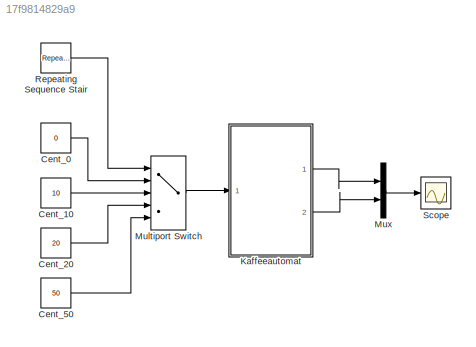
MODEL slx_17f9814829a9
KIND model
CONFIG AbsTol = auto
CONFIG FixedStep = auto
CONFIG MaxStep = auto
CONFIG MinStep = auto
CONFIG RelTol = 1e-3
CONFIG SampleTimeConstraint = Unconstrained
CONFIG Solver = FixedStepAuto
CONFIG SolverMode = Auto
CONFIG SolverName = FixedStepAuto
CONFIG StartTime = 0.0
CONFIG StopTime = 60
BLOCK [Constant] Cent_0
  Value = 0
BLOCK [Constant] Cent_10
  Value = 10
BLOCK [Constant] Cent_20
  Value = 20
BLOCK [Constant] Cent_50
  Value = 50
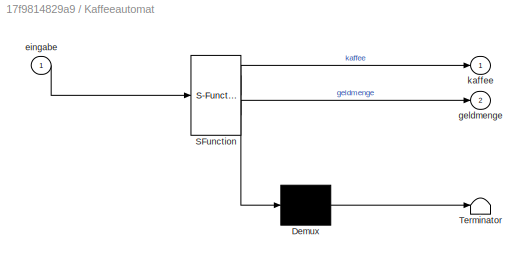
BLOCK [SubSystem] Kaffeeautomat
  ErrorFcn = Stateflow.Translate.translate
  PermitHierarchicalResolution = ExplicitOnly
  Ports = [1, 2]
  RequestExecContextInheritance = off
  SFBlockType = Chart
  TreatAsAtomicUnit = on
  Variant = off
BLOCK [Demux] Kaffeeautomat/ Demux 
  Outputs = 1
  Ports = [1, 1]
BLOCK [S-Function] Kaffeeautomat/ SFunction 
  EnableBusSupport = on
  FunctionName = sf_sfun
  PortCounts = [1 3]
  Ports = [1, 3]
  SFunctionDeploymentMode = off
  Tag = Stateflow S-Function kaffeeautomat_2 3
BLOCK [Terminator] Kaffeeautomat/ Terminator 
BLOCK [Inport] Kaffeeautomat/eingabe
  IconDisplay = Port number
BLOCK [Outport] Kaffeeautomat/geldmenge
  IconDisplay = Port number
  Port = 2
BLOCK [Outport] Kaffeeautomat/kaffee
  IconDisplay = Port number
BLOCK [MultiPortSwitch] Multiport Switch
  InputSameDT = off
  Inputs = 4
  Ports = [5, 1]
  SaturateOnIntegerOverflow = off
BLOCK [Mux] Mux
  DisplayOption = bar
  Inputs = 2
  Ports = [2, 1]
BLOCK [Reference] Repeating Sequence Stair  REF=simulink/Sources/Repeating
Sequence
Stair
  Ports = [0, 1]
  SourceBlock = simulink/Sources/Repeating\nSequence\nStair
  SourceType = Repeating Sequence Stair
BLOCK [Scope] Scope
  Ports = [1]
  ScopeSpecificationString = Simulink.scopes.TimeScopeBlockCfg('CurrentConfiguration', extmgr.ConfigurationSet(extmgr.Configuration('Core','General UI',true),extmgr.Configuration('Core','Source UI',true),extmgr.Configuration('Sources','WiredSimulink',true),extmgr.Configuration('Visuals','Time Domain',true,'SerializedDisplays',{struct('MinYLimReal','-11.25','MaxYLimReal','101.25','YLabelReal','','MinYLimMag','0.00000','MaxYLim...<+1358ch>
LINE Cent_0:1 -> Multiport Switch:2
LINE Cent_10:1 -> Multiport Switch:3
LINE Cent_20:1 -> Multiport Switch:4
LINE Cent_50:1 -> Multiport Switch:5
LINE Kaffeeautomat:1 -> Mux:1
LINE Kaffeeautomat:2 -> Mux:2
LINE Multiport Switch:1 -> Kaffeeautomat:1
LINE Mux:1 -> Scope:1
LINE Repeating Sequence Stair:1 -> Multiport Switch:1
CHART Kaffeeautomat states=2 transitions=6
  STATE_LABEL 'Kein_Kaffee/'
  STATE_LABEL 'Kaffee/\nentry: kaffee=1'
